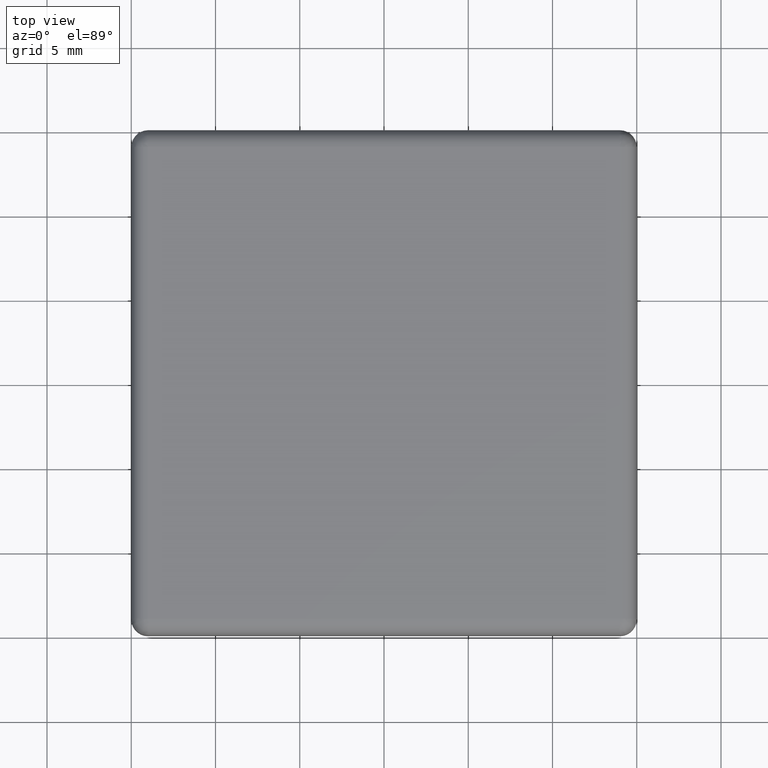
[diagram: clean part render]
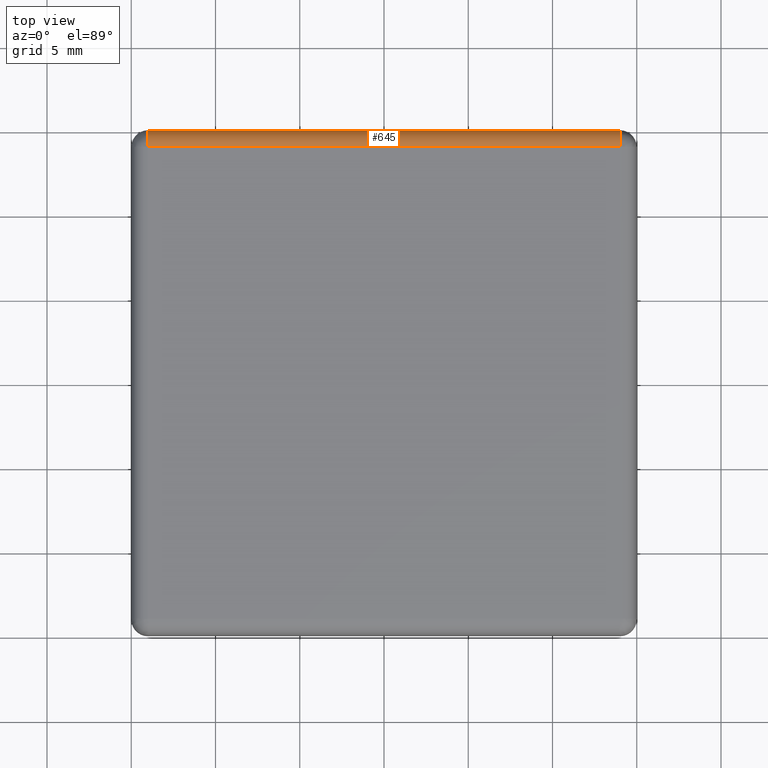
[diagram: same view with one face highlighted and labeled with its STEP entity id]
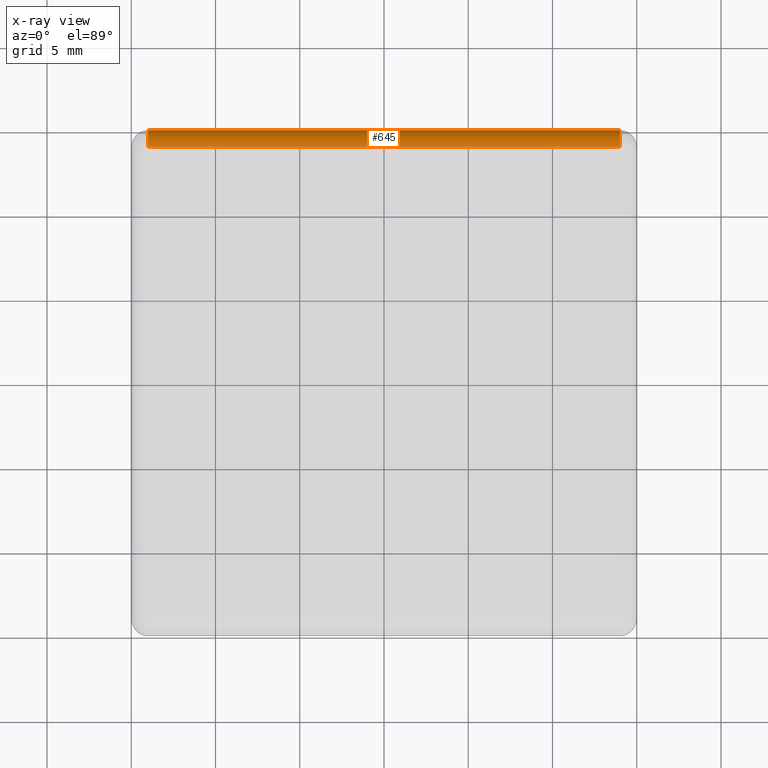
[diagram: x-ray of the same camera — body ghosted, the highlighted face saturated]
A machine part, top view. The second image highlights one B-rep face of the part: STEP entity #645.
The next image is the same camera in x-ray: the body ghosted, the highlighted face saturated — about 0% of this face is hidden behind the body in this view.
In plain terms, the highlighted cylindrical surface (edge-blend (fillet) strip) has radius 1 mm, axis along (1, 0, 0).
Its self-contained STEP definition (entity closure, byte-faithful):
#9=CARTESIAN_POINT('',(14.0,15.000000000033310,2.200000000000000));
#10=VERTEX_POINT('',#9);
#51=CARTESIAN_POINT('',(14.0,14.000000000033310,3.200000000000000));
#52=VERTEX_POINT('',#51);
#59=CARTESIAN_POINT('',(-13.999999999999996,14.000000000033303,3.200000000000000));
#60=VERTEX_POINT('',#59);
#61=CARTESIAN_POINT('',(14.0,14.000000000033310,3.200000000000000));
#62=DIRECTION('',(-1.0,0.0,0.0));
#63=VECTOR('',#62,28.0);
#64=LINE('',#61,#63);
#65=EDGE_CURVE('',#52,#60,#64,.T.);
#97=CARTESIAN_POINT('',(-13.999999999999996,15.000000000033303,2.200000000000000));
#98=VERTEX_POINT('',#97);
#105=CARTESIAN_POINT('',(14.0,15.000000000033310,2.200000000000000));
#106=DIRECTION('',(-1.0,0.0,0.0));
#107=VECTOR('',#106,27.999999999999996);
#108=LINE('',#105,#107);
#109=EDGE_CURVE('',#10,#98,#108,.T.);
#617=CARTESIAN_POINT('',(-14.0,14.000000000033310,2.200000000000000));
#618=DIRECTION('',(-1.0,0.0,0.0));
#619=DIRECTION('',(0.0,1.0,0.0));
#620=AXIS2_PLACEMENT_3D('',#617,#618,#619);
#621=CIRCLE('',#620,1.0);
#622=EDGE_CURVE('',#60,#98,#621,.T.);
#628=CARTESIAN_POINT('',(14.0,14.000000000033310,2.200000000000000));
#629=DIRECTION('',(1.0,0.0,0.0));
#630=DIRECTION('',(0.0,1.0,0.0));
#631=AXIS2_PLACEMENT_3D('',#628,#629,#630);
#632=CYLINDRICAL_SURFACE('',#631,1.0);
#633=ORIENTED_EDGE('',*,*,#622,.F.);
#634=ORIENTED_EDGE('',*,*,#65,.F.);
#635=CARTESIAN_POINT('',(14.0,14.000000000033310,2.200000000000000));
#636=DIRECTION('',(1.0,0.0,0.0));
#637=DIRECTION('',(0.0,1.0,0.0));
#638=AXIS2_PLACEMENT_3D('',#635,#636,#637);
#639=CIRCLE('',#638,1.0);
#640=EDGE_CURVE('',#10,#52,#639,.T.);
#641=ORIENTED_EDGE('',*,*,#640,.F.);
#642=ORIENTED_EDGE('',*,*,#109,.T.);
#643=EDGE_LOOP('',(#633,#634,#641,#642));
#644=FACE_OUTER_BOUND('',#643,.T.);
#645=ADVANCED_FACE('',(#644),#632,.T.);